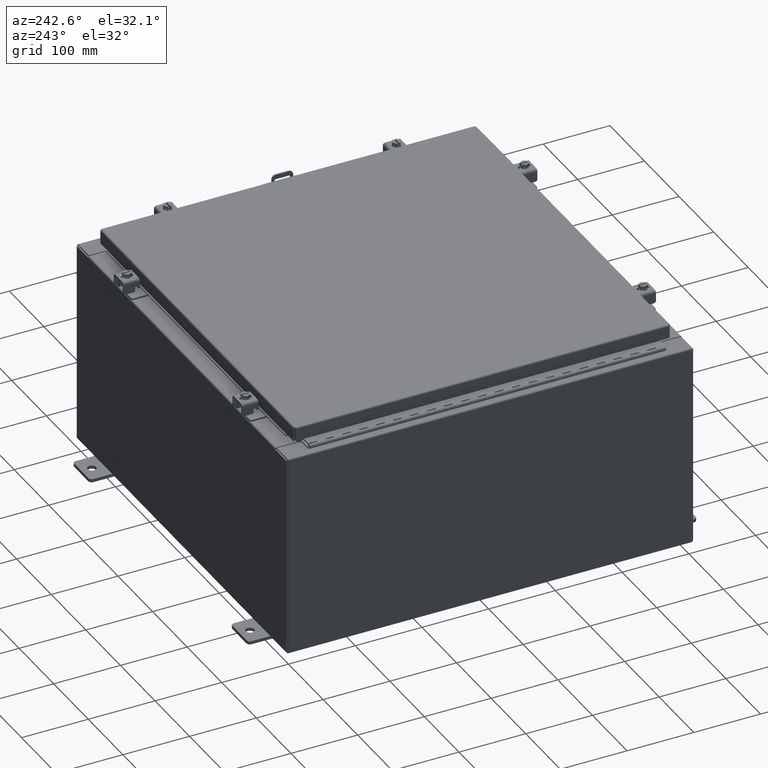
[diagram: clean part render]
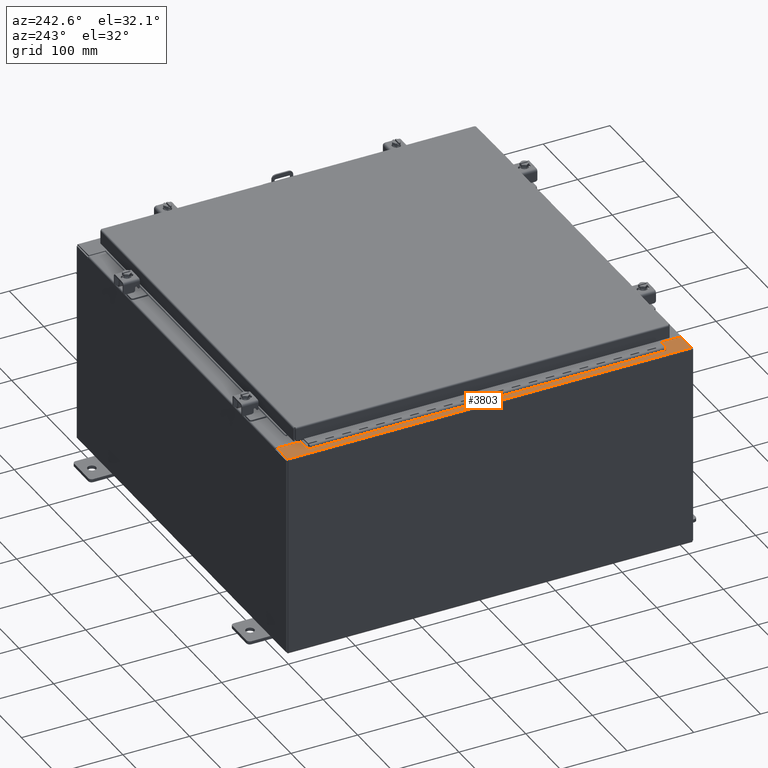
[diagram: same view with one face highlighted and labeled with its STEP entity id]
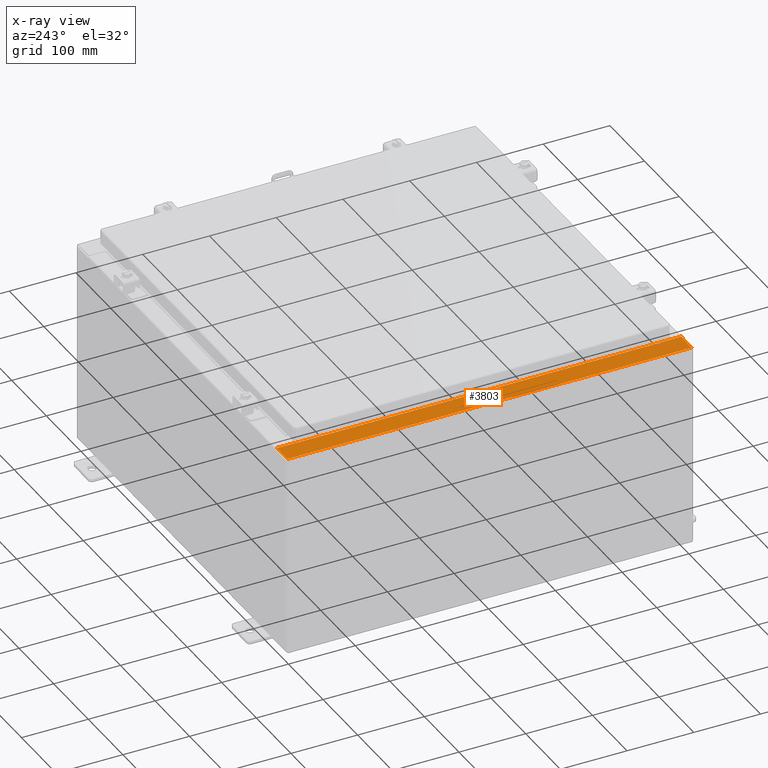
[diagram: x-ray of the same camera — body ghosted, the highlighted face saturated]
A machine part, auxiliary view. The second image highlights one B-rep face of the part: STEP entity #3803.
The next image is the same camera in x-ray: the body ghosted, the highlighted face saturated — about 0% of this face is hidden behind the body in this view.
In plain terms, the highlighted planar face has unit normal (0, 0, -1).
Its self-contained STEP definition (entity closure, byte-faithful):
#458 = DIRECTION ( 'NONE',  ( 1.000000000000000000, 0.0000000000000000000, 0.0000000000000000000 ) ) ;
#574 = CARTESIAN_POINT ( 'NONE',  ( -10.75005000000004600, 10.59374999999999800, 11.92530000000000900 ) ) ;
#885 = LINE ( 'NONE', #2646, #20085 ) ;
#1208 = DIRECTION ( 'NONE',  ( 1.000000000000000000, 0.0000000000000000000, 0.0000000000000000000 ) ) ;
#1396 = VECTOR ( 'NONE', #12685, 39.37007874015748100 ) ;
#1704 = VERTEX_POINT ( 'NONE', #10545 ) ;
#1947 = DIRECTION ( 'NONE',  ( 7.132762385546384700E-015, 0.0000000000000000000, -1.000000000000000000 ) ) ;
#2034 = DIRECTION ( 'NONE',  ( -7.132762385546384700E-015, -0.0000000000000000000, 1.000000000000000000 ) ) ;
#2090 = CARTESIAN_POINT ( 'NONE',  ( -10.69970000000004600, 11.92529999999999800, 11.92530000000000900 ) ) ;
#2133 = CARTESIAN_POINT ( 'NONE',  ( -10.71270000000004800, -10.59374999999998900, 11.92530000000000900 ) ) ;
#2497 = EDGE_CURVE ( 'NONE', #8158, #30045, #17216, .T. ) ;
#2646 = CARTESIAN_POINT ( 'NONE',  ( -11.91230000000004500, 11.92529999999999800, 11.92530000000000000 ) ) ;
#3803 = ADVANCED_FACE ( 'NONE', ( #23429 ), #26729, .F. ) ;
#4682 = LINE ( 'NONE', #25610, #16356 ) ;
#5079 = LINE ( 'NONE', #15609, #32410 ) ;
#5158 = CARTESIAN_POINT ( 'NONE',  ( -10.71270000000004800, 10.59374999999999800, 11.92530000000000900 ) ) ;
#6103 = VECTOR ( 'NONE', #12336, 39.37007874015748100 ) ;
#6106 = VERTEX_POINT ( 'NONE', #23679 ) ;
#7050 = EDGE_CURVE ( 'NONE', #24270, #29668, #885, .T. ) ;
#7379 = DIRECTION ( 'NONE',  ( -1.000000000000000000, 0.0000000000000000000, -7.132762385546384700E-015 ) ) ;
#7381 = VECTOR ( 'NONE', #26512, 39.37007874015748100 ) ;
#7413 = LINE ( 'NONE', #16871, #22279 ) ;
#8064 = CARTESIAN_POINT ( 'NONE',  ( -10.69970000000004600, -11.92530000000000000, 11.92530000000000900 ) ) ;
#8137 = VECTOR ( 'NONE', #26592, 39.37007874015748100 ) ;
#8158 = VERTEX_POINT ( 'NONE', #29889 ) ;
#8658 = ORIENTED_EDGE ( 'NONE', *, *, #7050, .F. ) ;
#9076 = CARTESIAN_POINT ( 'NONE',  ( -10.71270000000004800, 10.59374999999999300, 11.92530000000000900 ) ) ;
#9308 = ORIENTED_EDGE ( 'NONE', *, *, #15271, .F. ) ;
#9714 = LINE ( 'NONE', #26560, #8137 ) ;
#10543 = DIRECTION ( 'NONE',  ( -0.0000000000000000000, 1.000000000000000000, -0.0000000000000000000 ) ) ;
#10545 = CARTESIAN_POINT ( 'NONE',  ( -10.75005000000004600, -10.59374999999998900, 11.92530000000000900 ) ) ;
#10634 = VECTOR ( 'NONE', #458, 39.37007874015748100 ) ;
#10669 = EDGE_CURVE ( 'NONE', #14902, #29668, #5079, .T. ) ;
#11458 = ORIENTED_EDGE ( 'NONE', *, *, #27773, .F. ) ;
#11903 = AXIS2_PLACEMENT_3D ( 'NONE', #27273, #1947, #28342 ) ;
#12336 = DIRECTION ( 'NONE',  ( -1.000000000000000000, 0.0000000000000000000, 0.0000000000000000000 ) ) ;
#12550 = VERTEX_POINT ( 'NONE', #19138 ) ;
#12685 = DIRECTION ( 'NONE',  ( 1.000000000000000000, 0.0000000000000000000, 0.0000000000000000000 ) ) ;
#12921 = EDGE_CURVE ( 'NONE', #14912, #1704, #4682, .T. ) ;
#13000 = VERTEX_POINT ( 'NONE', #22784 ) ;
#13526 = EDGE_CURVE ( 'NONE', #6106, #14902, #9714, .T. ) ;
#13529 = LINE ( 'NONE', #24739, #6103 ) ;
#14303 = ORIENTED_EDGE ( 'NONE', *, *, #12921, .F. ) ;
#14902 = VERTEX_POINT ( 'NONE', #2090 ) ;
#14912 = VERTEX_POINT ( 'NONE', #2133 ) ;
#15158 = CARTESIAN_POINT ( 'NONE',  ( -10.69970000000004600, -10.63109999999999100, 11.92530000000000900 ) ) ;
#15271 = EDGE_CURVE ( 'NONE', #6106, #12550, #13529, .T. ) ;
#15281 = EDGE_CURVE ( 'NONE', #32371, #18981, #25203, .T. ) ;
#15609 = CARTESIAN_POINT ( 'NONE',  ( -8.532114493236847900E-014, 11.92529999999999800, 11.92530000000008500 ) ) ;
#16199 = DIRECTION ( 'NONE',  ( -7.132762385546384700E-015, -0.0000000000000000000, 1.000000000000000000 ) ) ;
#16356 = VECTOR ( 'NONE', #22166, 39.37007874015748100 ) ;
#16593 = ORIENTED_EDGE ( 'NONE', *, *, #13526, .T. ) ;
#16766 = ORIENTED_EDGE ( 'NONE', *, *, #27206, .T. ) ;
#16871 = CARTESIAN_POINT ( 'NONE',  ( -8.532114493236847900E-014, -11.92530000000000000, 11.92530000000008500 ) ) ;
#17001 = CARTESIAN_POINT ( 'NONE',  ( -10.75005000000004600, -10.61242499999998900, 11.92530000000000900 ) ) ;
#17216 = LINE ( 'NONE', #574, #10634 ) ;
#17427 = ORIENTED_EDGE ( 'NONE', *, *, #29051, .F. ) ;
#17821 = CIRCLE ( 'NONE', #26355, 0.01867499999999949400 ) ;
#18580 = VECTOR ( 'NONE', #31670, 39.37007874015748100 ) ;
#18981 = VERTEX_POINT ( 'NONE', #15158 ) ;
#19138 = CARTESIAN_POINT ( 'NONE',  ( -10.75005000000004600, 10.63109999999999600, 11.92530000000000900 ) ) ;
#19521 = DIRECTION ( 'NONE',  ( 1.000000000000000000, 0.0000000000000000000, 0.0000000000000000000 ) ) ;
#20085 = VECTOR ( 'NONE', #10543, 39.37007874015748100 ) ;
#20596 = LINE ( 'NONE', #25067, #1396 ) ;
#20811 = CARTESIAN_POINT ( 'NONE',  ( -10.69970000000004600, 0.0000000000000000000, 11.92530000000000900 ) ) ;
#21089 = CARTESIAN_POINT ( 'NONE',  ( -11.91230000000004500, 11.92529999999999800, 11.92530000000000000 ) ) ;
#22166 = DIRECTION ( 'NONE',  ( -1.000000000000000000, 0.0000000000000000000, 0.0000000000000000000 ) ) ;
#22279 = VECTOR ( 'NONE', #31835, 39.37007874015748100 ) ;
#22784 = CARTESIAN_POINT ( 'NONE',  ( -10.75005000000004600, -10.63109999999998800, 11.92530000000000900 ) ) ;
#22844 = EDGE_CURVE ( 'NONE', #1704, #13000, #27611, .T. ) ;
#23429 = FACE_OUTER_BOUND ( 'NONE', #26984, .T. ) ;
#23520 = ORIENTED_EDGE ( 'NONE', *, *, #15281, .T. ) ;
#23679 = CARTESIAN_POINT ( 'NONE',  ( -10.69970000000004600, 10.63109999999999600, 11.92530000000000900 ) ) ;
#24270 = VERTEX_POINT ( 'NONE', #30677 ) ;
#24739 = CARTESIAN_POINT ( 'NONE',  ( -10.69970000000004600, 10.63109999999999600, 11.92530000000000900 ) ) ;
#25067 = CARTESIAN_POINT ( 'NONE',  ( -10.75005000000004600, -10.63109999999998800, 11.92530000000000900 ) ) ;
#25203 = LINE ( 'NONE', #20811, #18580 ) ;
#25610 = CARTESIAN_POINT ( 'NONE',  ( -10.71270000000004800, -10.59374999999998900, 11.92530000000000900 ) ) ;
#26199 = ORIENTED_EDGE ( 'NONE', *, *, #2497, .F. ) ;
#26355 = AXIS2_PLACEMENT_3D ( 'NONE', #31167, #16199, #1208 ) ;
#26460 = AXIS2_PLACEMENT_3D ( 'NONE', #17001, #2034, #19521 ) ;
#26512 = DIRECTION ( 'NONE',  ( -0.0000000000000000000, -1.000000000000000000, -0.0000000000000000000 ) ) ;
#26560 = CARTESIAN_POINT ( 'NONE',  ( -10.69970000000004600, 0.0000000000000000000, 11.92530000000000900 ) ) ;
#26592 = DIRECTION ( 'NONE',  ( 0.0000000000000000000, 1.000000000000000000, 0.0000000000000000000 ) ) ;
#26729 = PLANE ( 'NONE',  #11903 ) ;
#26984 = EDGE_LOOP ( 'NONE', ( #9308, #16593, #31295, #8658, #16766, #23520, #27216, #31779, #14303, #11458, #26199, #17427 ) ) ;
#27206 = EDGE_CURVE ( 'NONE', #24270, #32371, #7413, .T. ) ;
#27216 = ORIENTED_EDGE ( 'NONE', *, *, #28739, .F. ) ;
#27273 = CARTESIAN_POINT ( 'NONE',  ( -8.532114493236847900E-014, 0.0000000000000000000, 11.92530000000008500 ) ) ;
#27611 = CIRCLE ( 'NONE', #26460, 0.01867499999999949400 ) ;
#27773 = EDGE_CURVE ( 'NONE', #30045, #14912, #32376, .T. ) ;
#28342 = DIRECTION ( 'NONE',  ( -1.000000000000000000, 0.0000000000000000000, -7.132762385546384700E-015 ) ) ;
#28739 = EDGE_CURVE ( 'NONE', #13000, #18981, #20596, .T. ) ;
#29051 = EDGE_CURVE ( 'NONE', #12550, #8158, #17821, .T. ) ;
#29668 = VERTEX_POINT ( 'NONE', #21089 ) ;
#29889 = CARTESIAN_POINT ( 'NONE',  ( -10.75005000000004600, 10.59374999999999800, 11.92530000000000900 ) ) ;
#30045 = VERTEX_POINT ( 'NONE', #5158 ) ;
#30677 = CARTESIAN_POINT ( 'NONE',  ( -11.91230000000004500, -11.92530000000000000, 11.92530000000000000 ) ) ;
#31167 = CARTESIAN_POINT ( 'NONE',  ( -10.75005000000004600, 10.61242499999999800, 11.92530000000000900 ) ) ;
#31295 = ORIENTED_EDGE ( 'NONE', *, *, #10669, .T. ) ;
#31670 = DIRECTION ( 'NONE',  ( 0.0000000000000000000, 1.000000000000000000, 0.0000000000000000000 ) ) ;
#31779 = ORIENTED_EDGE ( 'NONE', *, *, #22844, .F. ) ;
#31835 = DIRECTION ( 'NONE',  ( 1.000000000000000000, -0.0000000000000000000, 7.132762385546384700E-015 ) ) ;
#32371 = VERTEX_POINT ( 'NONE', #8064 ) ;
#32376 = LINE ( 'NONE', #9076, #7381 ) ;
#32410 = VECTOR ( 'NONE', #7379, 39.37007874015748100 ) ;